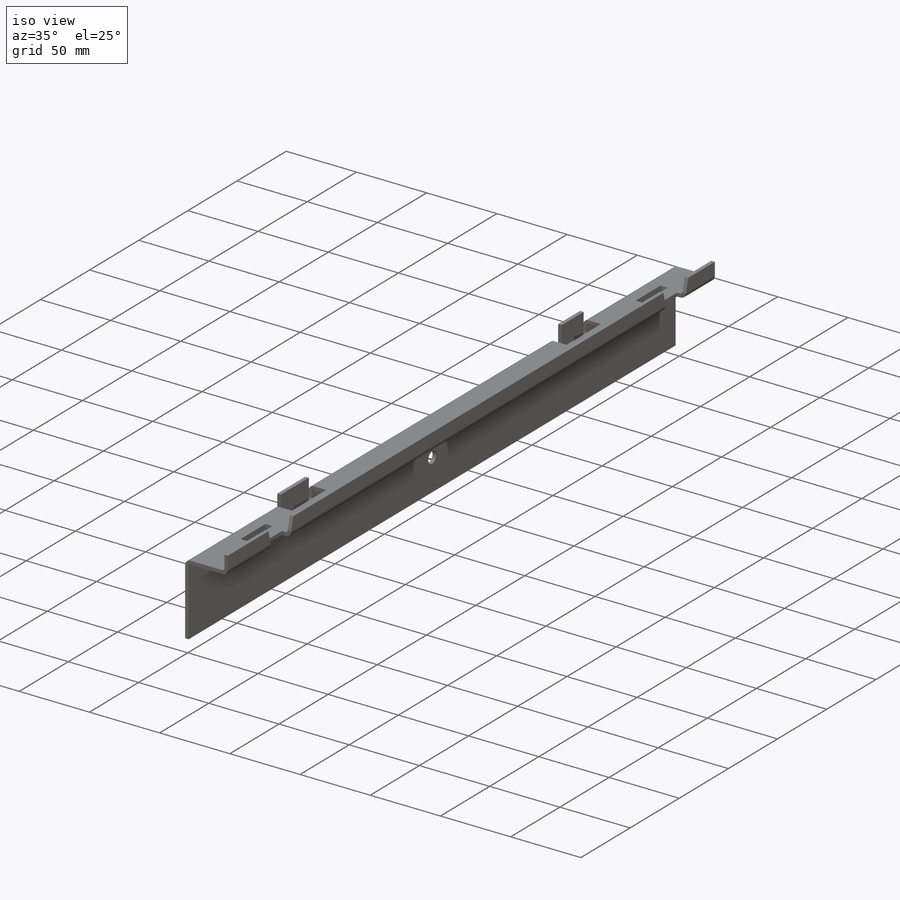
[diagram: iso view]
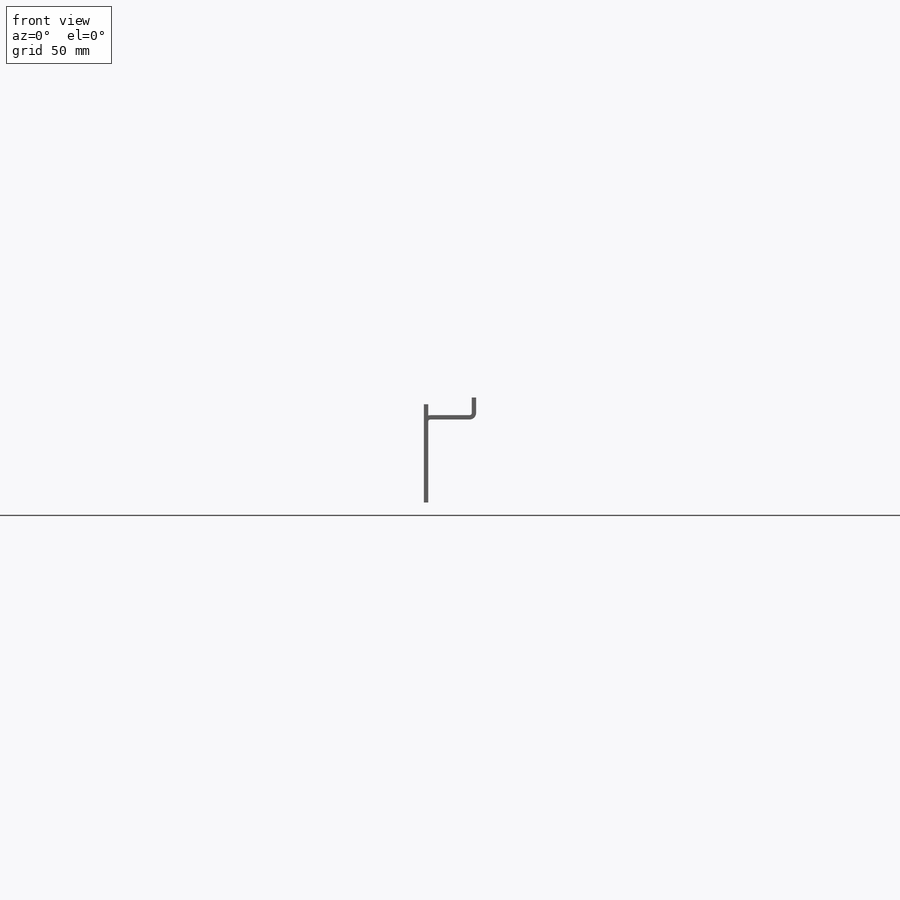
[diagram: front view]
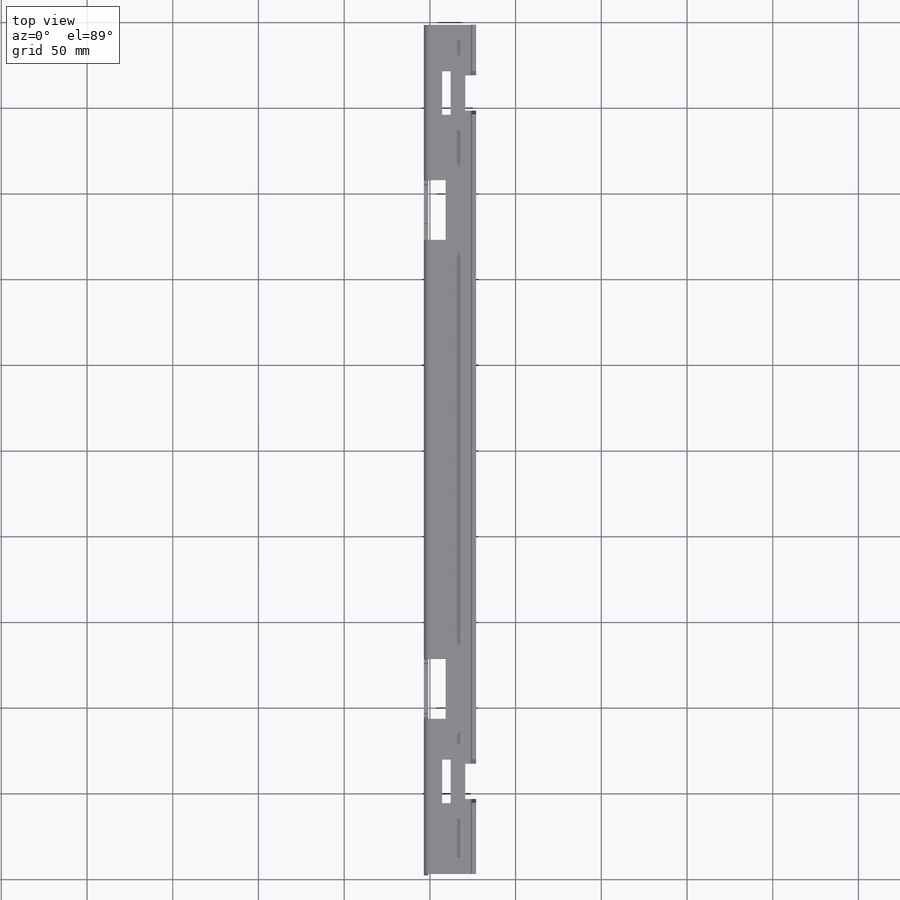
[diagram: top view]
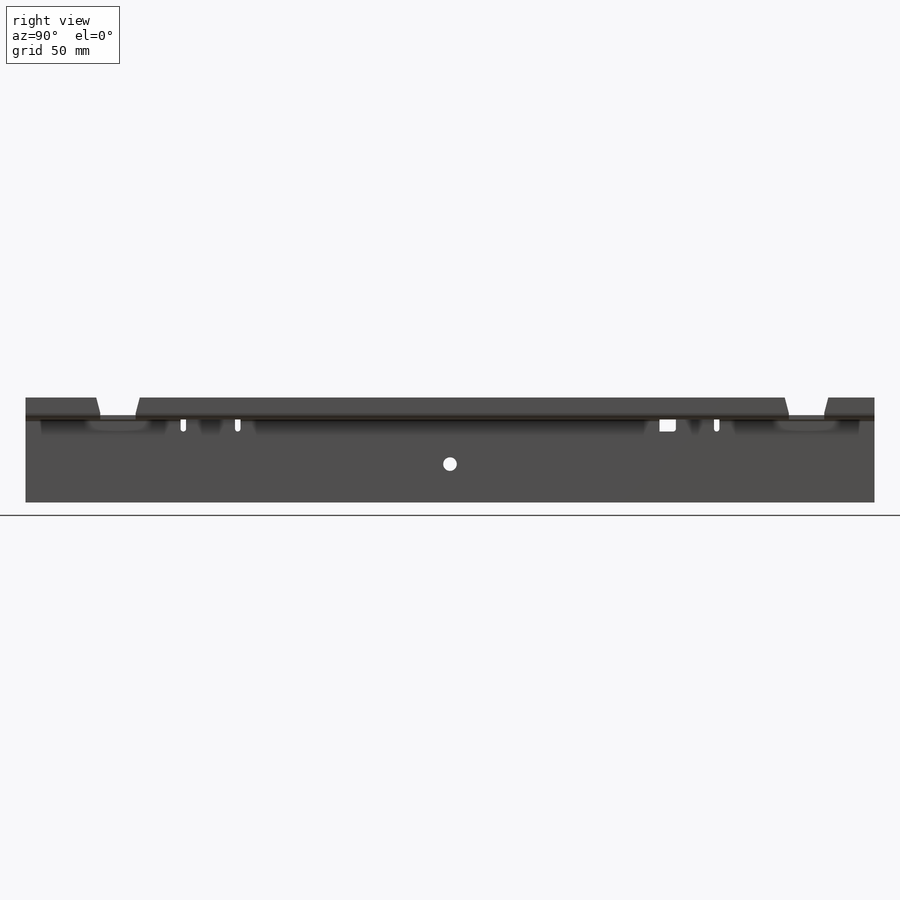
[diagram: right view]
SOLIDWORKS PART (.sldprt)
format: sldprt  version: not decoded by parser v0  size: 270,848 bytes
history: native  units: mm
features: sketch x6, cut_extrude x4, fillet x3, extrude x2, material x1 (+15 scaffold rows collapsed)
feature tree (31):
  scaffold x15  (default folders/planes/origin — collapsed)
  material  "Material <not specified>"
  sketch  "Sketch1"  dims[D1=30.48mm D2=2.54mm D3=2.54mm D4=~10.31875mm D5=2.54mm D6=~48.41875mm]
  extrude  "Extrude1"  Depth=495.3mm
  fillet  "Fillet2"  Radius=1.27mm
  fillet  "Fillet3"  Radius=3.81mm
  sketch  "Sketch2"  dims[D1=34.925mm D2=9.525mm D3=34.925mm D4=9.525mm D5=157.1625mm D6=157.1625mm]
  cut_extrude  "Cut-Extrude1"  Depth=12.7mm
  sketch  "Sketch3"  dims[D1=3.175mm D2=3.175mm D3=3.175mm D4=22.225mm]
  extrude  "Extrude2"  Depth=15.875mm
  fillet  "Fillet1"  Radius=1.5875mm
  sketch  "Sketch4"  dims[c1.D1=15.875mm c1.D2=15.875mm c1.D3=4.953mm c1.D4=4.953mm c1.D5=11.1125mm c2.D1=41.275mm c2.D5=10.668mm c2.D2=26.9875mm c2.D6=10.668mm c3.D5=10.668mm c3.D6=10.668mm c3.D7=25.4mm c3.D8=25.4mm]
  cut_extrude  "Cut-Extrude2"  [1 undecoded]
  sketch  "Sketch5"  dims[c1.D1=20.6375mm c1.D2=25.4mm c1.D3=41.275mm c1.D4=~25.400252mm c1.D5=20.6375mm c1.D6=26.9875mm c2.D4=25.4mm]
  cut_extrude  "Cut-Extrude3"  Depth=6.35mm
  sketch  "Sketch6"  dims[D1=22.225mm]
  cut_extrude  "Cut-Extrude4"  [1 undecoded]
decode coverage: 13 of 15 modeling features carry decoded parameters
note: ~ marks probable driven/reference dimensions
note: 2 parameter values undecoded
note: suppression state not decoded; provenance and decode notes live in map.json
